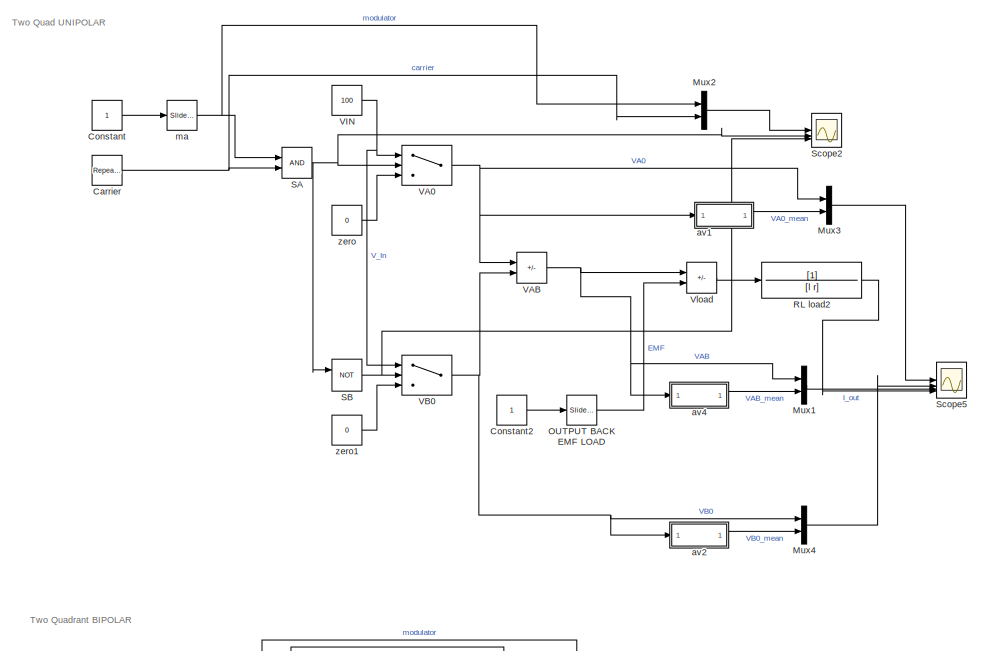
[diagram: root canvas - part 1/2, full width, top band]
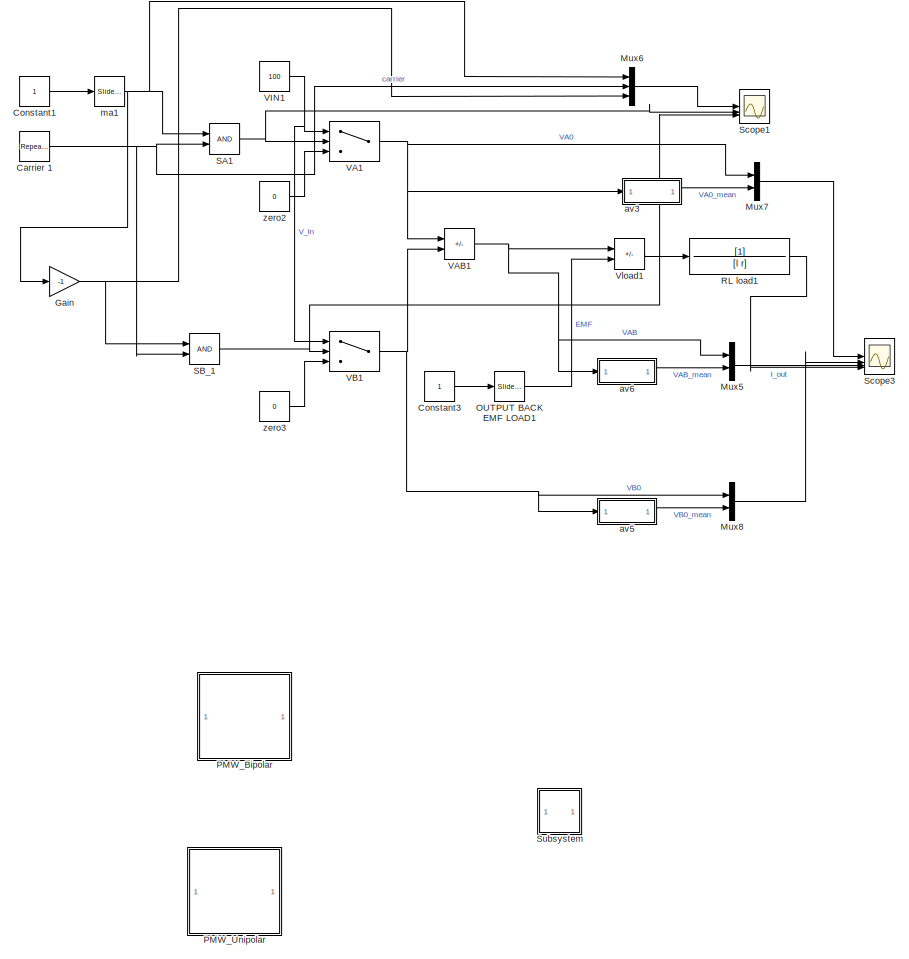
[diagram: root canvas - part 2/2, full width, bottom band]
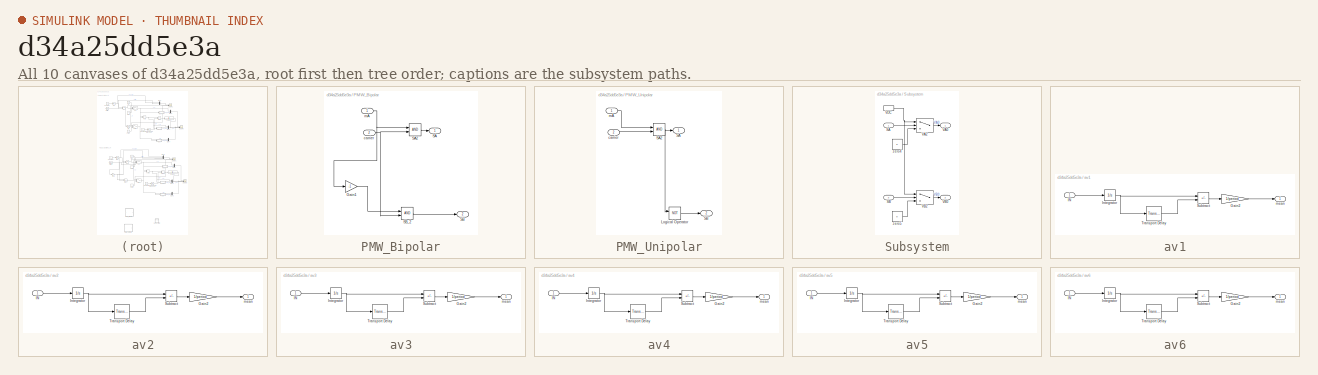
[diagram: thumbnail index - all 10 canvases of the model, root first then tree order]
MODEL slx_d34a25dd5e3a
KIND model
CONFIG AbsTol = auto
CONFIG EnableMultiTasking = off
CONFIG FixedStep = auto
CONFIG MaxStep = 1e-5
CONFIG MinStep = auto
CONFIG RelTol = 1e-3
CONFIG SampleTimeConstraint = Unconstrained
CONFIG SolverName = VariableStepAuto
CONFIG StartTime = 0.0
CONFIG StopTime = 10.0
BLOCK [Reference] Carrier   REF=simulink/Sources/Repeating
Sequence
  Commented = on
  SourceBlock = simulink/Sources/Repeating\nSequence
  SourceType = Repeating table
BLOCK [Reference] Carrier 1  REF=simulink/Sources/Repeating
Sequence
  SourceBlock = simulink/Sources/Repeating\nSequence
  SourceType = Repeating table
BLOCK [Constant] Constant
  Commented = on
BLOCK [Constant] Constant1
BLOCK [Constant] Constant2
  Commented = on
BLOCK [Constant] Constant3
BLOCK [Gain] Gain
  Gain = -1
BLOCK [Mux] Mux1
  Commented = on
  DisplayOption = bar
  Inputs = 2
BLOCK [Mux] Mux2
  Commented = on
  DisplayOption = bar
  Inputs = 2
BLOCK [Mux] Mux3
  Commented = on
  DisplayOption = bar
  Inputs = 2
BLOCK [Mux] Mux4
  Commented = on
  DisplayOption = bar
  Inputs = 2
BLOCK [Mux] Mux5
  DisplayOption = bar
  Inputs = 2
BLOCK [Mux] Mux6
  DisplayOption = bar
  Inputs = 3
BLOCK [Mux] Mux7
  DisplayOption = bar
  Inputs = 2
BLOCK [Mux] Mux8
  DisplayOption = bar
  Inputs = 2
BLOCK [Reference] OUTPUT BACK EMF LOAD  REF=simulink/Math
Operations/Slider
Gain
  Commented = on
  SourceBlock = simulink/Math\nOperations/Slider\nGain
  SourceType = Slider Gain
BLOCK [Reference] OUTPUT BACK EMF LOAD1  REF=simulink/Math
Operations/Slider
Gain
  SourceBlock = simulink/Math\nOperations/Slider\nGain
  SourceType = Slider Gain
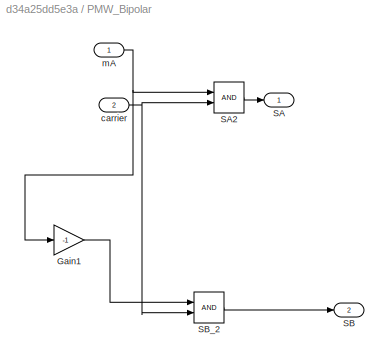
BLOCK [SubSystem] PMW_Bipolar
BLOCK [Gain] PMW_Bipolar/Gain1
  Gain = -1
BLOCK [Outport] PMW_Bipolar/SA
BLOCK [RelationalOperator] PMW_Bipolar/SA2
  InputSameDT = off
  OutDataTypeStr = boolean
  RndMeth = Simplest
BLOCK [Outport] PMW_Bipolar/SB
  Port = 2
BLOCK [RelationalOperator] PMW_Bipolar/SB_2
  InputSameDT = off
  OutDataTypeStr = boolean
  RndMeth = Simplest
BLOCK [Inport] PMW_Bipolar/carrier
  Port = 2
BLOCK [Inport] PMW_Bipolar/mA
BLOCK [SubSystem] PMW_Unipolar
BLOCK [Logic] PMW_Unipolar/Logical Operator
  AllPortsSameDT = off
  Operator = NOT
  OutDataTypeStr = boolean
BLOCK [Outport] PMW_Unipolar/SA
BLOCK [RelationalOperator] PMW_Unipolar/SA2
  InputSameDT = off
  OutDataTypeStr = boolean
  RndMeth = Simplest
BLOCK [Outport] PMW_Unipolar/SB
  Port = 2
BLOCK [Inport] PMW_Unipolar/carrier
  Port = 2
BLOCK [Inport] PMW_Unipolar/mA
BLOCK [TransferFcn] RL load1
  Denominator = [l r]
BLOCK [TransferFcn] RL load2
  Commented = on
  Denominator = [l r]
BLOCK [RelationalOperator] SA
  Commented = on
  InputSameDT = off
  OutDataTypeStr = boolean
  RndMeth = Simplest
BLOCK [RelationalOperator] SA1
  InputSameDT = off
  OutDataTypeStr = boolean
  RndMeth = Simplest
BLOCK [Logic] SB
  AllPortsSameDT = off
  Commented = on
  Operator = NOT
  OutDataTypeStr = boolean
BLOCK [RelationalOperator] SB_1
  InputSameDT = off
  OutDataTypeStr = boolean
  RndMeth = Simplest
BLOCK [Scope] Scope1
  Floating = off
  NumInputPorts = 3
  ScopeSpecificationString = Simulink.scopes.TimeScopeBlockCfg('CurrentConfiguration', extmgr.ConfigurationSet(extmgr.Configuration('Core','General UI',true),extmgr.Configuration('Core','Source UI',true),extmgr.Configuration('Sources','WiredSimulink',true,'DataLoggingVariableName','ScopeData2'),extmgr.Configuration('Visuals','Time Domain',true,'SerializedDisplays',{struct('MinYLimReal','-1.24797','MaxYLimReal','1.23175','YLab...<+3559ch>
BLOCK [Scope] Scope2
  Commented = on
  Floating = off
  NumInputPorts = 3
  ScopeSpecificationString = Simulink.scopes.TimeScopeBlockCfg('CurrentConfiguration', extmgr.ConfigurationSet(extmgr.Configuration('Core','General UI',true),extmgr.Configuration('Core','Source UI',true),extmgr.Configuration('Sources','WiredSimulink',true),extmgr.Configuration('Visuals','Time Domain',true,'SerializedDisplays',{struct('MinYLimReal','-0.125','MaxYLimReal','1.125','YLabelReal','[pu]','MinYLimMag','0.00000','MaxY...<+3498ch>
BLOCK [Scope] Scope3
  Floating = off
  NumInputPorts = 4
  ScopeSpecificationString = Simulink.scopes.TimeScopeBlockCfg('CurrentConfiguration', extmgr.ConfigurationSet(extmgr.Configuration('Core','General UI',true),extmgr.Configuration('Core','Source UI',true),extmgr.Configuration('Sources','WiredSimulink',true,'DataLoggingVariableName','ScopeData3'),extmgr.Configuration('Visuals','Time Domain',true,'SerializedDisplays',{struct('MinYLimReal','-12.5','MaxYLimReal','112.5','YLabelRea...<+4918ch>
BLOCK [Scope] Scope5
  Commented = on
  Floating = off
  NumInputPorts = 4
  ScopeSpecificationString = Simulink.scopes.TimeScopeBlockCfg('CurrentConfiguration', extmgr.ConfigurationSet(extmgr.Configuration('Core','General UI',true),extmgr.Configuration('Core','Source UI',true),extmgr.Configuration('Sources','WiredSimulink',true,'DataLoggingVariableName','ScopeData1'),extmgr.Configuration('Visuals','Time Domain',true,'SerializedDisplays',{struct('MinYLimReal','-1.00000','MaxYLimReal','1.00000','YLab...<+4931ch>
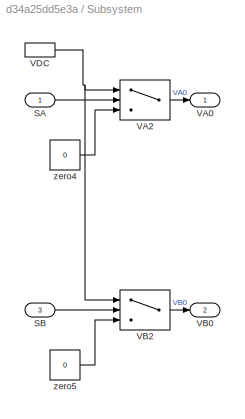
BLOCK [SubSystem] Subsystem
BLOCK [Inport] Subsystem/SA
BLOCK [Inport] Subsystem/SB
  Port = 3
BLOCK [Outport] Subsystem/VA0
BLOCK [Switch] Subsystem/VA2
  Criteria = u2 > Threshold
  InputSameDT = off
  SaturateOnIntegerOverflow = off
BLOCK [Outport] Subsystem/VB0
  Port = 2
BLOCK [Switch] Subsystem/VB2
  Criteria = u2 > Threshold
  InputSameDT = off
  SaturateOnIntegerOverflow = off
BLOCK [InportShadow] Subsystem/VDC
BLOCK [Constant] Subsystem/zero4
  Value = 0
BLOCK [Constant] Subsystem/zero5
  Value = 0
BLOCK [Switch] VA0
  Commented = on
  Criteria = u2 > Threshold
  InputSameDT = off
  SaturateOnIntegerOverflow = off
BLOCK [Switch] VA1
  Criteria = u2 > Threshold
  InputSameDT = off
  SaturateOnIntegerOverflow = off
BLOCK [Sum] VAB
  Commented = on
  IconShape = rectangular
  Inputs = +-
BLOCK [Sum] VAB1
  IconShape = rectangular
  Inputs = +-
BLOCK [Switch] VB0
  Commented = on
  Criteria = u2 > Threshold
  InputSameDT = off
  SaturateOnIntegerOverflow = off
BLOCK [Switch] VB1
  Criteria = u2 > Threshold
  InputSameDT = off
  SaturateOnIntegerOverflow = off
BLOCK [Constant] VIN
  Commented = on
  Value = 100
BLOCK [Constant] VIN1
  Value = 100
BLOCK [Sum] Vload
  Commented = on
  IconShape = rectangular
  Inputs = +-
BLOCK [Sum] Vload1
  IconShape = rectangular
  Inputs = +-
BLOCK [SubSystem] av1
  Commented = on
BLOCK [Gain] av1/Gain2
  Gain = 1/period
BLOCK [Inport] av1/IN
BLOCK [Integrator] av1/Integrator
BLOCK [Sum] av1/Subtract
  IconShape = rectangular
  Inputs = +-
BLOCK [TransportDelay] av1/Transport Delay
  DelayTime = period
BLOCK [Outport] av1/mean
BLOCK [SubSystem] av2
  Commented = on
BLOCK [Gain] av2/Gain2
  Gain = 1/period
BLOCK [Inport] av2/IN
BLOCK [Integrator] av2/Integrator
BLOCK [Sum] av2/Subtract
  IconShape = rectangular
  Inputs = +-
BLOCK [TransportDelay] av2/Transport Delay
  DelayTime = period
BLOCK [Outport] av2/mean
BLOCK [SubSystem] av3
BLOCK [Gain] av3/Gain2
  Gain = 1/period
BLOCK [Inport] av3/IN
BLOCK [Integrator] av3/Integrator
BLOCK [Sum] av3/Subtract
  IconShape = rectangular
  Inputs = +-
BLOCK [TransportDelay] av3/Transport Delay
  DelayTime = period
BLOCK [Outport] av3/mean
BLOCK [SubSystem] av4
  Commented = on
BLOCK [Gain] av4/Gain2
  Gain = 1/period
BLOCK [Inport] av4/IN
BLOCK [Integrator] av4/Integrator
BLOCK [Sum] av4/Subtract
  IconShape = rectangular
  Inputs = +-
BLOCK [TransportDelay] av4/Transport Delay
  DelayTime = period
BLOCK [Outport] av4/mean
BLOCK [SubSystem] av5
BLOCK [Gain] av5/Gain2
  Gain = 1/period
BLOCK [Inport] av5/IN
BLOCK [Integrator] av5/Integrator
BLOCK [Sum] av5/Subtract
  IconShape = rectangular
  Inputs = +-
BLOCK [TransportDelay] av5/Transport Delay
  DelayTime = period
BLOCK [Outport] av5/mean
BLOCK [SubSystem] av6
BLOCK [Gain] av6/Gain2
  Gain = 1/period
BLOCK [Inport] av6/IN
BLOCK [Integrator] av6/Integrator
BLOCK [Sum] av6/Subtract
  IconShape = rectangular
  Inputs = +-
BLOCK [TransportDelay] av6/Transport Delay
  DelayTime = period
BLOCK [Outport] av6/mean
BLOCK [Reference] ma  REF=simulink/Math
Operations/Slider
Gain
  Commented = on
  SourceBlock = simulink/Math\nOperations/Slider\nGain
  SourceType = Slider Gain
BLOCK [Reference] ma1  REF=simulink/Math
Operations/Slider
Gain
  SourceBlock = simulink/Math\nOperations/Slider\nGain
  SourceType = Slider Gain
BLOCK [Constant] zero
  Commented = on
  Value = 0
BLOCK [Constant] zero1
  Commented = on
  Value = 0
BLOCK [Constant] zero2
  Value = 0
BLOCK [Constant] zero3
  Value = 0
ANNOTATION (root): Two Quad UNIPOLAR
ANNOTATION (root): Two Quadrant BIPOLAR
NET Carrier 1:1 -> Mux6:2, SA1:2, SB_1:2
NET Carrier :1 -> Mux2:2, SA:2
LINE Constant1:1 -> ma1:1
LINE Constant2:1 -> OUTPUT BACK EMF LOAD:1
LINE Constant3:1 -> OUTPUT BACK EMF LOAD1:1
LINE Constant:1 -> ma:1
NET Gain:1 -> Mux6:3, SB_1:1
LINE Mux1:1 -> Scope5:3
LINE Mux2:1 -> Scope2:1
LINE Mux3:1 -> Scope5:1
LINE Mux4:1 -> Scope5:2
LINE Mux5:1 -> Scope3:3
LINE Mux6:1 -> Scope1:1
LINE Mux7:1 -> Scope3:1
LINE Mux8:1 -> Scope3:2
LINE OUTPUT BACK EMF LOAD1:1 -> Vload1:2
LINE OUTPUT BACK EMF LOAD:1 -> Vload:2
LINE PMW_Bipolar/Gain1:1 -> PMW_Bipolar/SB_2:1
LINE PMW_Bipolar/SA2:1 -> PMW_Bipolar/SA:1
LINE PMW_Bipolar/SB_2:1 -> PMW_Bipolar/SB:1
NET PMW_Bipolar/carrier:1 -> PMW_Bipolar/SA2:2, PMW_Bipolar/SB_2:2
NET PMW_Bipolar/mA:1 -> PMW_Bipolar/Gain1:1, PMW_Bipolar/SA2:1
LINE PMW_Unipolar/Logical Operator:1 -> PMW_Unipolar/SB:1
NET PMW_Unipolar/SA2:1 -> PMW_Unipolar/Logical Operator:1, PMW_Unipolar/SA:1
LINE PMW_Unipolar/carrier:1 -> PMW_Unipolar/SA2:2
LINE PMW_Unipolar/mA:1 -> PMW_Unipolar/SA2:1
LINE RL load1:1 -> Scope3:4
LINE RL load2:1 -> Scope5:4
NET SA1:1 -> Scope1:2, VA1:2
NET SA:1 -> SB:1, Scope2:2, VA0:2
NET SB:1 -> Scope2:3, VB0:2
NET SB_1:1 -> Scope1:3, VB1:2
LINE Subsystem/SA:1 -> Subsystem/VA2:2
LINE Subsystem/SB:1 -> Subsystem/VB2:2
LINE Subsystem/VA2:1 -> Subsystem/VA0:1
LINE Subsystem/VB2:1 -> Subsystem/VB0:1
NET Subsystem/VDC:1 -> Subsystem/VA2:1, Subsystem/VB2:1
LINE Subsystem/zero4:1 -> Subsystem/VA2:3
LINE Subsystem/zero5:1 -> Subsystem/VB2:3
NET VA0:1 -> Mux3:1, VAB:1, av1:1
NET VA1:1 -> Mux7:1, VAB1:1, av3:1
NET VAB1:1 -> Mux5:1, Vload1:1, av6:1
NET VAB:1 -> Mux1:1, Vload:1, av4:1
NET VB0:1 -> Mux4:1, VAB:2, av2:1
NET VB1:1 -> Mux8:1, VAB1:2, av5:1
NET VIN1:1 -> VA1:1, VB1:1
NET VIN:1 -> VA0:1, VB0:1
LINE Vload1:1 -> RL load1:1
LINE Vload:1 -> RL load2:1
LINE av1/Gain2:1 -> av1/mean:1
LINE av1/IN:1 -> av1/Integrator:1
NET av1/Integrator:1 -> av1/Subtract:1, av1/Transport Delay:1
LINE av1/Subtract:1 -> av1/Gain2:1
LINE av1/Transport Delay:1 -> av1/Subtract:2
LINE av1:1 -> Mux3:2
LINE av2/Gain2:1 -> av2/mean:1
LINE av2/IN:1 -> av2/Integrator:1
NET av2/Integrator:1 -> av2/Subtract:1, av2/Transport Delay:1
LINE av2/Subtract:1 -> av2/Gain2:1
LINE av2/Transport Delay:1 -> av2/Subtract:2
LINE av2:1 -> Mux4:2
LINE av3/Gain2:1 -> av3/mean:1
LINE av3/IN:1 -> av3/Integrator:1
NET av3/Integrator:1 -> av3/Subtract:1, av3/Transport Delay:1
LINE av3/Subtract:1 -> av3/Gain2:1
LINE av3/Transport Delay:1 -> av3/Subtract:2
LINE av3:1 -> Mux7:2
LINE av4/Gain2:1 -> av4/mean:1
LINE av4/IN:1 -> av4/Integrator:1
NET av4/Integrator:1 -> av4/Subtract:1, av4/Transport Delay:1
LINE av4/Subtract:1 -> av4/Gain2:1
LINE av4/Transport Delay:1 -> av4/Subtract:2
LINE av4:1 -> Mux1:2
LINE av5/Gain2:1 -> av5/mean:1
LINE av5/IN:1 -> av5/Integrator:1
NET av5/Integrator:1 -> av5/Subtract:1, av5/Transport Delay:1
LINE av5/Subtract:1 -> av5/Gain2:1
LINE av5/Transport Delay:1 -> av5/Subtract:2
LINE av5:1 -> Mux8:2
LINE av6/Gain2:1 -> av6/mean:1
LINE av6/IN:1 -> av6/Integrator:1
NET av6/Integrator:1 -> av6/Subtract:1, av6/Transport Delay:1
LINE av6/Subtract:1 -> av6/Gain2:1
LINE av6/Transport Delay:1 -> av6/Subtract:2
LINE av6:1 -> Mux5:2
NET ma1:1 -> Gain:1, Mux6:1, SA1:1
NET ma:1 -> Mux2:1, SA:1
LINE zero1:1 -> VB0:3
LINE zero2:1 -> VA1:3
LINE zero3:1 -> VB1:3
LINE zero:1 -> VA0:3
note: NET lines group one-source signal fan-out (src -> all destinations, sorted); 1:1 wires keep LINE
